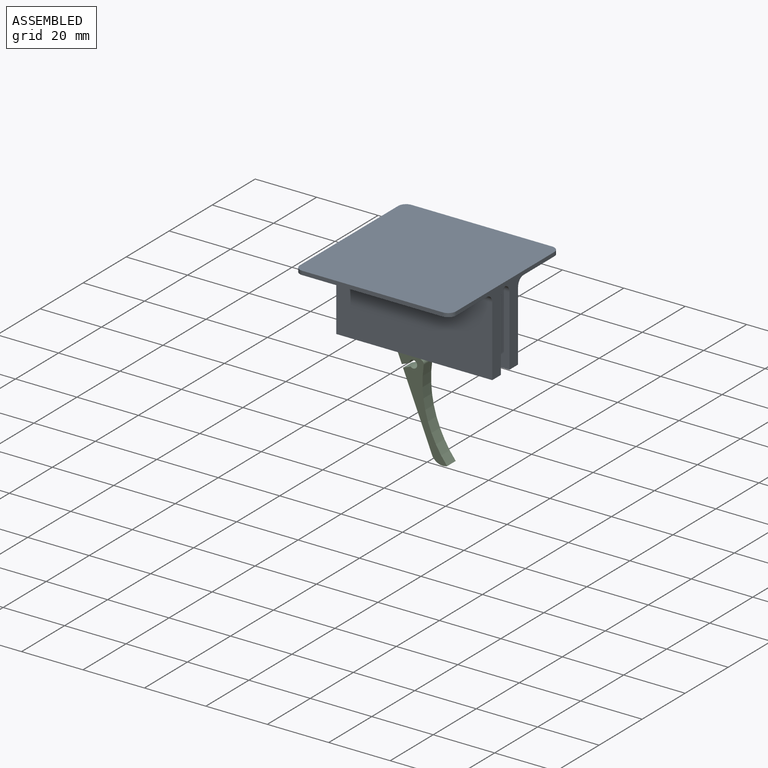
[diagram: assembled view]
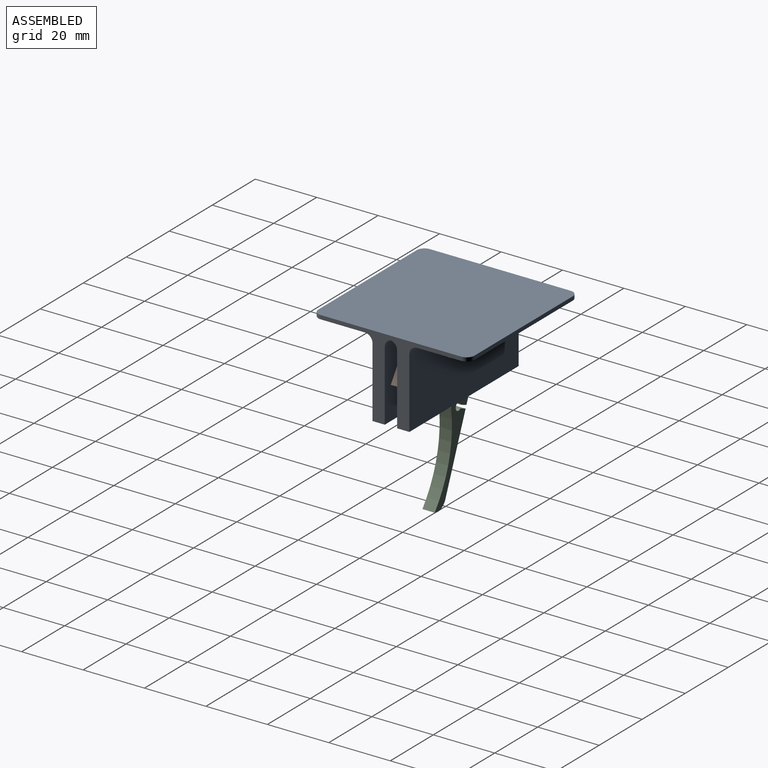
[diagram: assembled view, second angle]
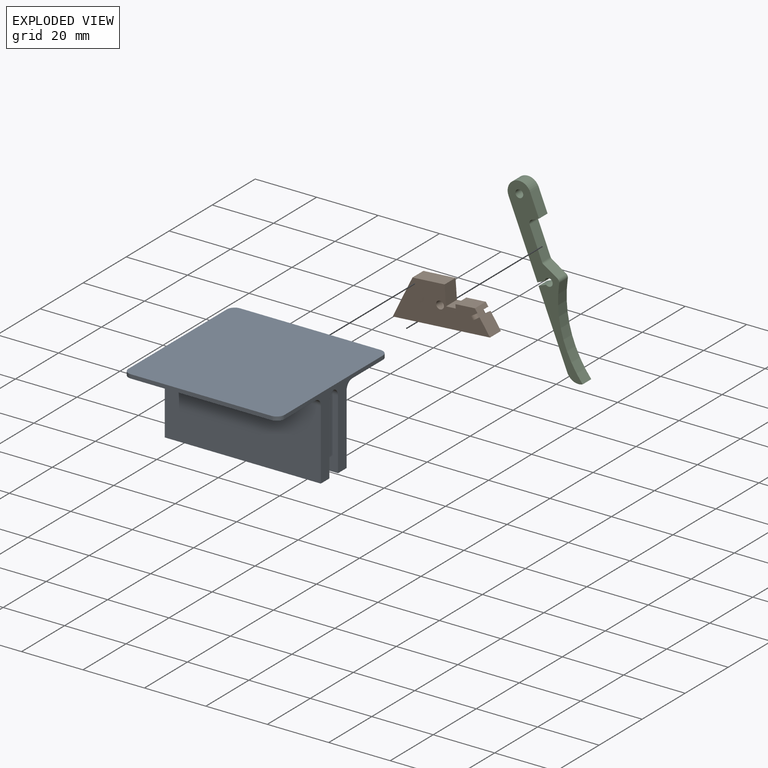
[diagram: exploded view]
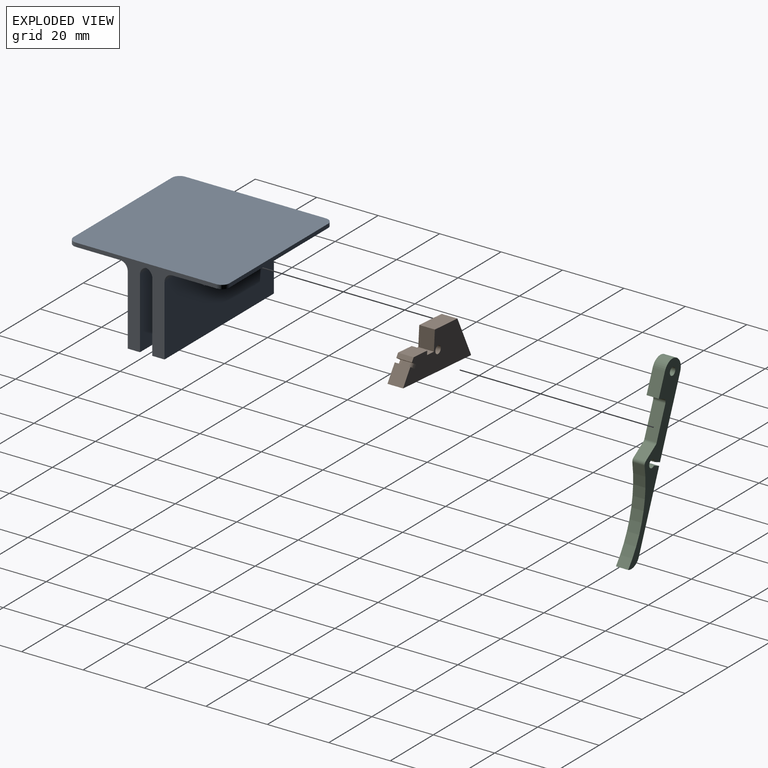
[diagram: exploded view, second angle]
ASSEMBLY  parts=3 mates=2
PART A: 25 faces, bbox 50.8x50.8x26.7 mm
  f0: plane 45.72x26.67mm, normal (1,0,0), area 266.8mm2, adj f2,f4,f6,f7,f10,f11,f12,f15
  f1: plane 45.72x26.67mm, normal (-1,0,0), area 266.8mm2, adj f2,f4,f6,f7,f10,f11,f12,f15
  f2: plane 50.8x4mm, normal (0,0,1), area 203.2mm2, adj f0,f1,f4,f6
  f3: cylinder r=1.27mm len=4mm, axis (0,1,0), area 31.9mm2, adj f4,f6
  f4: plane 50.8x22.86mm, normal (0,1,0), area 1151.2mm2, adj f0,f1,f2,f3,f5,f23
  f5: cylinder r=1.27mm len=4mm, axis (0,1,0), area 31.9mm2, adj f4,f6
  f6: plane 50.8x22.86mm, normal (0,-1,0), area 1151.2mm2, adj f0,f1,f2,f3,f5,f22
  f7: plane 50.8x4mm, normal (0,0,1), area 203.2mm2, adj f0,f1,f10,f11
  f8: cylinder r=1.27mm len=4mm, axis (0,1,0), area 31.9mm2, adj f10,f11
  f9: cylinder r=1.27mm len=4mm, axis (0,1,0), area 31.9mm2, adj f10,f11
  f10: plane 50.8x22.86mm, normal (0,-1,0), area 1151.2mm2, adj f0,f1,f7,f8,f9,f24
  f11: plane 50.8x22.86mm, normal (0,1,0), area 1151.2mm2, adj f0,f1,f7,f8,f9,f21
  f12: plane 50.8x16.86mm, normal (0,0,1), area 853.7mm2, adj f0,f1,f14,f18,f19,f24
  f13: plane 45.72x1.27mm, normal (0,1,0), area 58.1mm2, adj f15,f16,f17,f20
  f14: plane 45.72x1.27mm, normal (0,-1,0), area 58.1mm2, adj f12,f15,f18,f19
  f15: plane 50.8x50.8mm, normal (0,0,-1), area 2575.1mm2, adj f0,f1,f13,f14,f17,f18,f19,f20
  f16: plane 50.8x16.86mm, normal (0,0,1), area 853.7mm2, adj f0,f1,f13,f17,f20,f23
  f17: cylinder r=2.54mm len=2.54mm, axis (0,0,-1), area 5.1mm2, adj f1,f13,f15,f16
  f18: cylinder r=2.54mm len=2.54mm, axis (0,0,-1), area 5.1mm2, adj f1,f12,f14,f15
  f19: cylinder r=2.54mm len=2.54mm, axis (0,0,-1), area 5.1mm2, adj f0,f12,f14,f15
  f20: cylinder r=2.54mm len=2.54mm, axis (0,0,-1), area 5.1mm2, adj f0,f13,f15,f16
  f21: cylinder r=2.54mm len=50.8mm, axis (1,0,0), area 175mm2, adj f0,f1,f11,f22
  f22: cylinder r=2.54mm len=50.8mm, axis (-1,0,0), area 175mm2, adj f0,f1,f6,f21
  f23: cylinder r=2.54mm len=50.8mm, axis (1,0,0), area 202.7mm2, adj f0,f1,f4,f16
  f24: cylinder r=2.54mm len=50.8mm, axis (-1,0,0), area 202.7mm2, adj f0,f1,f10,f12
PART B: 17 faces, bbox 31.8x5.1x12.7 mm
  f0: plane 5.25x5.08mm, normal (-0.87,0,0.5), area 30.8mm2, adj f1,f12,f13,f14
  f1: plane 31.75x5.08mm, normal (0,0,-1), area 161.3mm2, adj f0,f2,f13,f14
  f2: plane 12.7x7.33mm, normal (0.87,0,0.5), area 74.5mm2, adj f1,f3,f13,f14
  f3: plane 10.49x5.08mm, normal (0,0,1), area 53.3mm2, adj f2,f4,f13,f14
  f4: plane 6.35x5.08mm, normal (-1,0,0), area 32.3mm2, adj f3,f5,f13,f14
  f5: plane 5.08x3.18mm, normal (0,0,1), area 16.1mm2, adj f4,f6,f13,f14
  f6: plane 5.08x1.27mm, normal (1,0,0), area 6.5mm2, adj f5,f7,f13,f14
  f7: plane 6.35x5.08mm, normal (0,0,1), area 32.3mm2, adj f6,f8,f13,f14
  f8: plane 5.08x1.27mm, normal (-0.87,0,0.5), area 7.4mm2, adj f7,f9,f13,f14
  f9: plane 5.08x2.2mm, normal (-0.5,0,-0.87), area 7.1mm2, adj f8,f10,f13,f14,f15,f16
  f10: plane 2.54x1.1mm, normal (-0.87,0,0.5), area 3.2mm2, adj f9,f12,f15,f16
  f11: cylinder r=1.27mm len=5.08mm, axis (0,1,0), area 40.5mm2, adj f13,f14
  f12: plane 5.08x2.2mm, normal (0.5,0,0.87), area 7.1mm2, adj f0,f10,f13,f14,f15,f16
  f13: plane 31.75x12.7mm, normal (0,-1,0), area 256.8mm2, adj f0,f1,f2,f3,f4,f5,f6,f7
  f14: plane 31.75x12.7mm, normal (0,1,0), area 256.8mm2, adj f0,f1,f2,f3,f4,f5,f6,f7
  f15: cylinder r=1.27mm len=1.74mm, axis (-0.5,0,-0.87), area 2.5mm2, adj f9,f10,f12,f14
  f16: cylinder r=1.27mm len=1.74mm, axis (0.5,0,0.87), area 2.5mm2, adj f9,f10,f12,f13
PART C: 18 faces, bbox 7.6x4x58.4 mm
  f0: plane 4x2.65mm, normal (0,0,1), area 10.6mm2, adj f1,f12,f13,f14
  f1: cylinder r=1.27mm len=4mm, axis (0,1,0), area 27.7mm2, adj f0,f2,f13,f14
  f2: plane 4x2.65mm, normal (0,0,-1), area 10.6mm2, adj f1,f3,f13,f14
  f3: plane 24.89x4mm, normal (1,0,0), area 99.6mm2, adj f2,f4,f13,f14
  f4: cylinder r=3.81mm len=7.62mm, axis (0,1,0), area 47.9mm2, adj f3,f5,f13,f14
  f5: plane 7.62x4mm, normal (-1,0,0), area 30.5mm2, adj f4,f6,f13,f14
  f6: plane 4x2.54mm, normal (0,0,-1), area 10.2mm2, adj f5,f13,f14,f15
  f7: plane 10.67x4mm, normal (-1,0,0), area 42.7mm2, adj f13,f14,f15,f16
  f8: plane 4.43x4mm, normal (-0.82,0,0.57), area 21.6mm2, adj f13,f14,f16,f17
  f9: cylinder r=35.44mm len=28.51mm, axis (0,1,0), area 118.3mm2, adj f10,f13,f14,f17
  f10: cylinder r=3.81mm len=4mm, axis (0,1,0), area 23.9mm2, adj f9,f12,f13,f14
  f11: cylinder r=1.27mm len=4mm, axis (0,1,0), area 31.9mm2, adj f13,f14
  f12: plane 24.89x4mm, normal (1,0,0), area 99.6mm2, adj f0,f10,f13,f14
  f13: plane 58.42x7.62mm, normal (0,-1,0), area 246.7mm2, adj f0,f1,f2,f3,f4,f5,f6,f7
  f14: plane 58.42x7.62mm, normal (0,1,0), area 246.7mm2, adj f0,f1,f2,f3,f4,f5,f6,f7
  f15: cylinder r=1.27mm len=4mm, axis (0,-1,0), area 8mm2, adj f6,f7,f13,f14
  f16: cylinder r=1.27mm len=4mm, axis (0,-1,0), area 3.1mm2, adj f7,f8,f13,f14
  f17: cylinder r=1.27mm len=4mm, axis (0,1,0), area 5.8mm2, adj f8,f9,f13,f14
PLACE A rot(axis=(1,0,0),180deg) t=(-25.4,0,-1.27)mm
PLACE B rot(axis=(0.04,0,-1),180deg) t=(6.35,-0.54,-10.79)mm
PLACE C rot(axis=(0.19,0,-0.98),180deg) t=(-12.7,-2,-7.62)mm
MATE revolute A.f5 <-> B.f11  axis (0,-1,0) through (6.35,2,-10.79)mm
MATE revolute A.f3 <-> C.f11  axis (0,-1,0) through (-12.7,2,-7.62)mm
